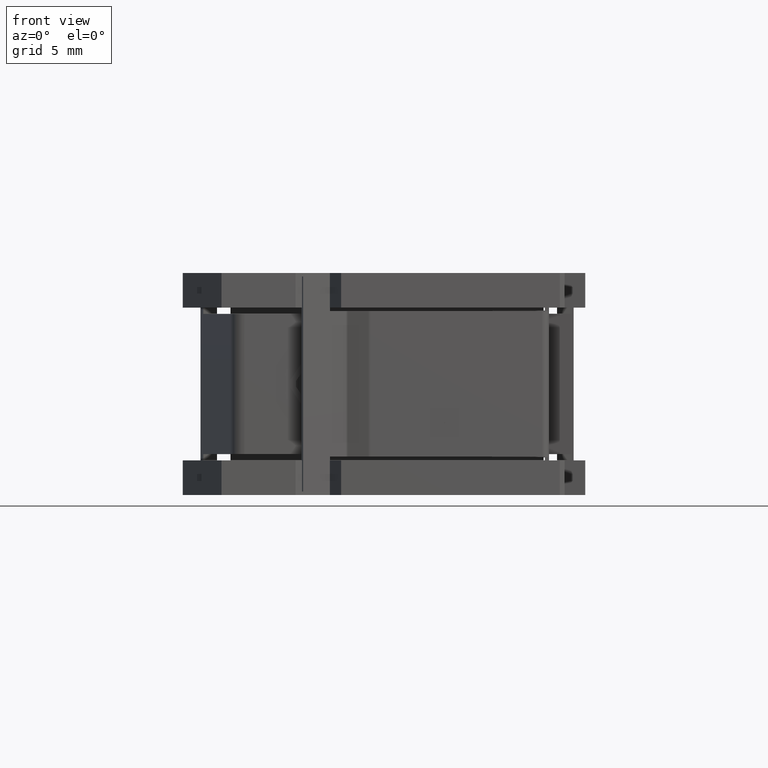
[diagram: clean part render]
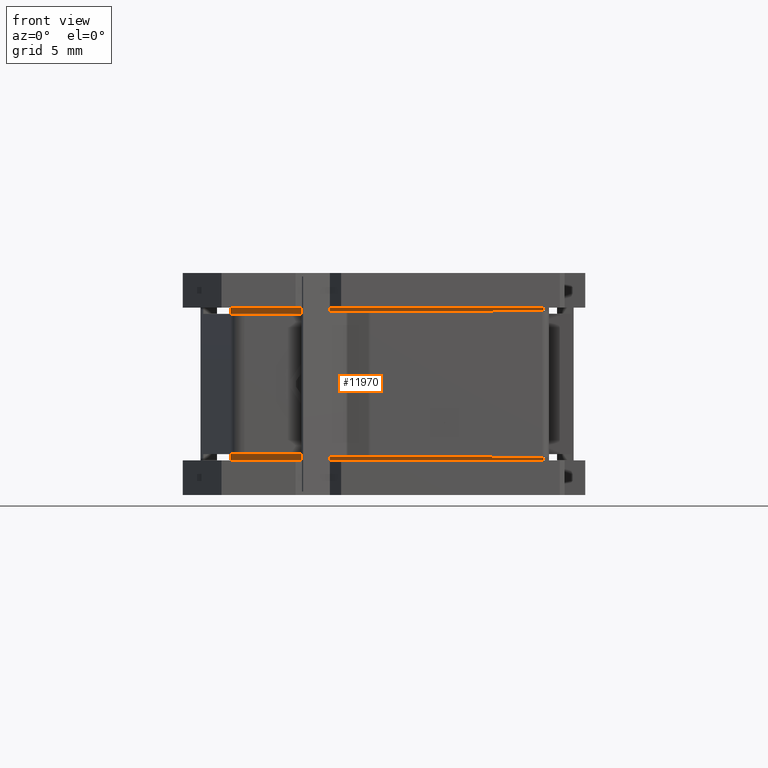
[diagram: same view with one face highlighted and labeled with its STEP entity id]
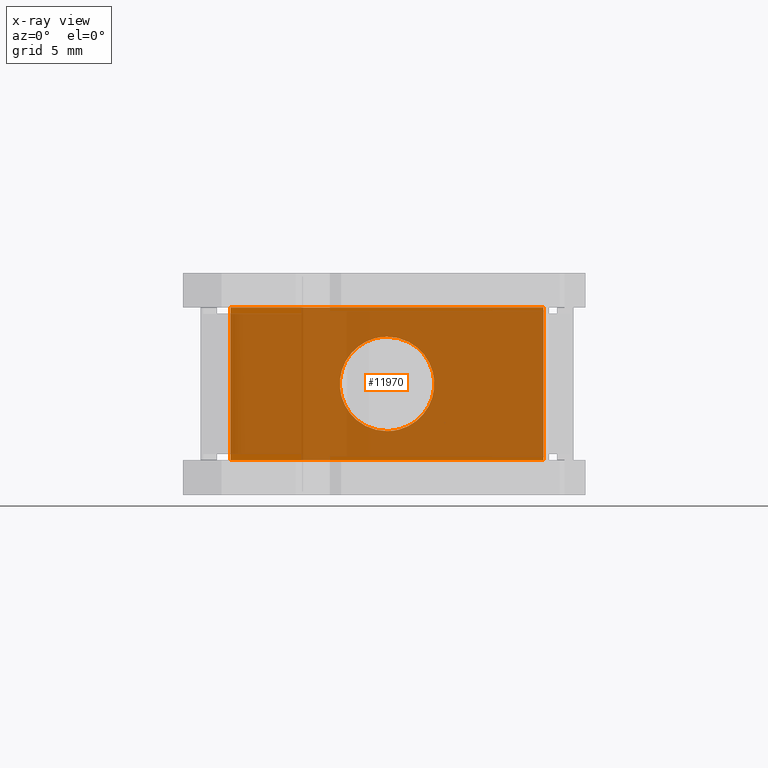
[diagram: x-ray of the same camera — body ghosted, the highlighted face saturated]
A machine part, front view. The second image highlights one B-rep face of the part: STEP entity #11970.
The next image is the same camera in x-ray: the body ghosted, the highlighted face saturated — about 94% of this face is hidden behind the body in this view.
In plain terms, the highlighted planar face has unit normal (0, -1, 0).
Its self-contained STEP definition (entity closure, byte-faithful):
#1187 = VECTOR ( 'NONE', #2668, 1000.000000000000000 ) ;
#1291 = VECTOR ( 'NONE', #1796, 1000.000000000000000 ) ;
#1328 = VECTOR ( 'NONE', #2111, 1000.000000000000000 ) ;
#1463 = AXIS2_PLACEMENT_3D ( 'NONE', #7236, #7200, #7191 ) ;
#1796 = DIRECTION ( 'NONE',  ( 0.0000000000000000000, 0.0000000000000000000, 1.000000000000000000 ) ) ;
#1824 = LINE ( 'NONE', #1829, #1291 ) ;
#1829 = CARTESIAN_POINT ( 'NONE',  ( -1.533721769870785700, 32.12833341090971100, -14.51688671857709400 ) ) ;
#2107 = LINE ( 'NONE', #2108, #1328 ) ;
#2108 = CARTESIAN_POINT ( 'NONE',  ( 0.2562782301292144100, 32.12833341090971100, 9.500000000000000000 ) ) ;
#2111 = DIRECTION ( 'NONE',  ( -1.000000000000000000, -0.0000000000000000000, -0.0000000000000000000 ) ) ;
#2323 = CARTESIAN_POINT ( 'NONE',  ( 9.746278230129213700, 32.12833341090971100, 7.399999999999996800 ) ) ;
#2343 = CARTESIAN_POINT ( 'NONE',  ( 9.746278230129213700, 32.12833341090971100, 0.6000000000000033100 ) ) ;
#2469 = CARTESIAN_POINT ( 'NONE',  ( 12.73882402315612300, 32.12833341090971100, 5.622207370752411400 ) ) ;
#2473 = CARTESIAN_POINT ( 'NONE',  ( 10.64284028658189200, 32.12833341090970400, 7.283038224719036600 ) ) ;
#2474 = CARTESIAN_POINT ( 'NONE',  ( 10.90968945972460700, 32.12833341090971800, 7.194977936367725300 ) ) ;
#2475 = CARTESIAN_POINT ( 'NONE',  ( 9.962535554188498600, 32.12833341090971100, 7.399932532248025800 ) ) ;
#2476 = CARTESIAN_POINT ( 'NONE',  ( 10.98416959531631100, 32.12833341090970400, 7.166674078404602400 ) ) ;
#2477 = CARTESIAN_POINT ( 'NONE',  ( 11.81869151036778100, 32.12833341090971800, 6.735807766215761400 ) ) ;
#2478 = CARTESIAN_POINT ( 'NONE',  ( 10.97267067652811800, 32.12833341090971800, 7.171140871005161600 ) ) ;
#2479 = CARTESIAN_POINT ( 'NONE',  ( 12.53536198593195600, 32.12833341090970400, 5.969893804184956700 ) ) ;
#2480 = CARTESIAN_POINT ( 'NONE',  ( 13.14621084213439100, 32.12833341090971800, 4.432003362527972900 ) ) ;
#2481 = CARTESIAN_POINT ( 'NONE',  ( 12.91743154877150700, 32.12833341090971100, 2.773639009648169600 ) ) ;
#2482 = CARTESIAN_POINT ( 'NONE',  ( 12.73495510038437600, 32.12833341090970400, 2.312297273144435600 ) ) ;
#2483 = CARTESIAN_POINT ( 'NONE',  ( 11.98461893107358200, 32.12833341090971100, 1.429962056067995100 ) ) ;
#2484 = CARTESIAN_POINT ( 'NONE',  ( 11.18601778736244000, 32.12833341090970400, 0.9187460408506368200 ) ) ;
#2485 = CARTESIAN_POINT ( 'NONE',  ( 11.05214138973207500, 32.12833341090970400, 0.8607317366069922000 ) ) ;
#2486 = CARTESIAN_POINT ( 'NONE',  ( 10.17914960099034300, 32.12833341090970400, 0.6001350467939633400 ) ) ;
#2487 = CARTESIAN_POINT ( 'NONE',  ( 9.746278230129213700, 32.12833341090971100, 0.6000000000000033100 ) ) ;
#2490 = CARTESIAN_POINT ( 'NONE',  ( 10.82115920607666800, 32.12833341090970400, 7.226503507470680700 ) ) ;
#2497 = CARTESIAN_POINT ( 'NONE',  ( 10.94749616712384300, 32.12833341090971800, 7.180768788935296200 ) ) ;
#2498 = CARTESIAN_POINT ( 'NONE',  ( 13.02944922964431200, 32.12833341090970400, 3.103773474716152100 ) ) ;
#2499 = CARTESIAN_POINT ( 'NONE',  ( 12.97285918956426100, 32.12833341090971100, 2.925314750567697500 ) ) ;
#2500 = CARTESIAN_POINT ( 'NONE',  ( 12.91295230853388200, 32.12833341090970400, 2.762108634812919100 ) ) ;
#2501 = CARTESIAN_POINT ( 'NONE',  ( 10.28116879879675800, 32.12833341090970400, 7.370041959385577700 ) ) ;
#2502 = CARTESIAN_POINT ( 'NONE',  ( 12.48208599634325800, 32.12833341090971100, 1.927586719761229300 ) ) ;
#2503 = CARTESIAN_POINT ( 'NONE',  ( 9.746278230129213700, 32.12833341090971100, 7.399999999999996800 ) ) ;
#2504 = CARTESIAN_POINT ( 'NONE',  ( 12.90258723434143700, 32.12833341090971100, 5.264073487186235100 ) ) ;
#2506 = CARTESIAN_POINT ( 'NONE',  ( 11.43398095698415600, 32.12833341090972500, 6.988676870257300800 ) ) ;
#2507 = CARTESIAN_POINT ( 'NONE',  ( 12.82753218927865600, 32.12833341090971800, 5.439739557232579500 ) ) ;
#2508 = CARTESIAN_POINT ( 'NONE',  ( 13.06663747454262700, 32.12833341090971800, 4.849874822882600100 ) ) ;
#2509 = CARTESIAN_POINT ( 'NONE',  ( 13.11649722257621200, 32.12833341090970400, 3.465556806224228100 ) ) ;
#2510 = CARTESIAN_POINT ( 'NONE',  ( 12.92707132159414500, 32.12833341090971100, 2.798843477192523000 ) ) ;
#2512 = CARTESIAN_POINT ( 'NONE',  ( 12.88554649352224300, 32.12833341090971100, 5.305863159602659500 ) ) ;
#2513 = CARTESIAN_POINT ( 'NONE',  ( 12.89666874910051700, 32.12833341090971100, 5.278769591385120000 ) ) ;
#2514 = CARTESIAN_POINT ( 'NONE',  ( 11.71617203431567200, 32.12833341090969700, 1.210916244197437300 ) ) ;
#2515 = CARTESIAN_POINT ( 'NONE',  ( 12.31631617406131700, 32.12833341090971800, 6.238340700943507700 ) ) ;
#2516 = CARTESIAN_POINT ( 'NONE',  ( 11.36848560088275100, 32.12833341090971100, 1.007454206973221700 ) ) ;
#2517 = CARTESIAN_POINT ( 'NONE',  ( 12.94129765862071400, 32.12833341090970400, 2.836693623894865900 ) ) ;
#2518 = CARTESIAN_POINT ( 'NONE',  ( 11.09262773140133800, 32.12833341090971800, 0.8776476709117297900 ) ) ;
#2520 = CARTESIAN_POINT ( 'NONE',  ( 13.14631192412662300, 32.12833341090971100, 3.783998318736015800 ) ) ;
#2521 = CARTESIAN_POINT ( 'NONE',  ( 11.02504782151443600, 32.12833341090971100, 0.8496094810287095900 ) ) ;
#2522 = CARTESIAN_POINT ( 'NONE',  ( 10.59632360516046900, 32.12833341090971100, 0.6797083055898762700 ) ) ;
#2523 = CARTESIAN_POINT ( 'NONE',  ( 12.86863055921752700, 32.12833341090970400, 5.346349501271763700 ) ) ;
#2524 = CARTESIAN_POINT ( 'NONE',  ( 11.01034638756080500, 32.12833341090971100, 0.8436888848501735700 ) ) ;
#2579 = CARTESIAN_POINT ( 'NONE',  ( -1.533721769870785200, 32.12833341090971100, -1.500000000000001300 ) ) ;
#2590 = CARTESIAN_POINT ( 'NONE',  ( 5.986278230129217400, 32.12833341090971100, -1.500000000000001300 ) ) ;
#2592 = CARTESIAN_POINT ( 'NONE',  ( 21.02627823012921800, 32.12833341090971100, -1.500000000000000200 ) ) ;
#2597 = CARTESIAN_POINT ( 'NONE',  ( 13.50627823012921700, 32.12833341090971100, -1.500000000000001300 ) ) ;
#2642 = CARTESIAN_POINT ( 'NONE',  ( 21.02627823012922200, 32.12833341090971100, -14.51688671857709400 ) ) ;
#2661 = LINE ( 'NONE', #2642, #1187 ) ;
#2668 = DIRECTION ( 'NONE',  ( 0.0000000000000000000, 0.0000000000000000000, -1.000000000000000000 ) ) ;
#5061 = CARTESIAN_POINT ( 'NONE',  ( 8.508386864942274000, 32.12833341090971800, 0.8333259215952435500 ) ) ;
#5095 = CARTESIAN_POINT ( 'NONE',  ( 9.746278230129213700, 32.12833341090971100, 0.6000000000000033100 ) ) ;
#5096 = CARTESIAN_POINT ( 'NONE',  ( 8.671397254179098000, 32.12833341090972500, 0.7734964925293206200 ) ) ;
#5097 = CARTESIAN_POINT ( 'NONE',  ( 8.582867000532390400, 32.12833341090971100, 0.8050220636322739100 ) ) ;
#5103 = CARTESIAN_POINT ( 'NONE',  ( 8.849716173671973600, 32.12833341090971100, 0.7169617752809635000 ) ) ;
#5107 = CARTESIAN_POINT ( 'NONE',  ( 9.530020906066452500, 32.12833341090971800, 0.6000674677519755000 ) ) ;
#5108 = CARTESIAN_POINT ( 'NONE',  ( 9.211387661455578500, 32.12833341090970400, 0.6299580406144214000 ) ) ;
#5110 = CARTESIAN_POINT ( 'NONE',  ( 8.545060293133751400, 32.12833341090971100, 0.8192312110647039800 ) ) ;
#5111 = CARTESIAN_POINT ( 'NONE',  ( 8.519885783729884900, 32.12833341090971100, 0.8288591289948369400 ) ) ;
#5112 = CARTESIAN_POINT ( 'NONE',  ( 6.346345618124035900, 32.12833341090971100, 3.567996637470107300 ) ) ;
#5113 = CARTESIAN_POINT ( 'NONE',  ( 7.507937529185396000, 32.12833341090971800, 6.570037943932362600 ) ) ;
#5114 = CARTESIAN_POINT ( 'NONE',  ( 6.565485138664281600, 32.12833341090971100, 5.201156522807707500 ) ) ;
#5115 = CARTESIAN_POINT ( 'NONE',  ( 6.376059237682219400, 32.12833341090971100, 4.534443193777448800 ) ) ;
#5116 = CARTESIAN_POINT ( 'NONE',  ( 8.896232855098610100, 32.12833341090971800, 7.320291694410119700 ) ) ;
#5117 = CARTESIAN_POINT ( 'NONE',  ( 6.623925901040698800, 32.12833341090971100, 2.653650498728430400 ) ) ;
#5119 = CARTESIAN_POINT ( 'NONE',  ( 6.579604151724494100, 32.12833341090970400, 5.237891365187016900 ) ) ;
#5120 = CARTESIAN_POINT ( 'NONE',  ( 6.463107230614114400, 32.12833341090970400, 4.896226525285106500 ) ) ;
#5121 = CARTESIAN_POINT ( 'NONE',  ( 8.467508638744059000, 32.12833341090972500, 7.150390518971334200 ) ) ;
#5122 = CARTESIAN_POINT ( 'NONE',  ( 6.346244536131806100, 32.12833341090970400, 4.216001681264941700 ) ) ;
#5123 = CARTESIAN_POINT ( 'NONE',  ( 7.010470463914076700, 32.12833341090971100, 6.072413280238057700 ) ) ;
#5124 = CARTESIAN_POINT ( 'NONE',  ( 9.313406859268726000, 32.12833341090971100, 7.399864953206031400 ) ) ;
#5125 = CARTESIAN_POINT ( 'NONE',  ( 8.124070859376393700, 32.12833341090971100, 6.992545793027243700 ) ) ;
#5129 = CARTESIAN_POINT ( 'NONE',  ( 9.746278230129213700, 32.12833341090971100, 7.399999999999996800 ) ) ;
#5130 = CARTESIAN_POINT ( 'NONE',  ( 6.595887711157848400, 32.12833341090970400, 2.721230408614943500 ) ) ;
#5132 = CARTESIAN_POINT ( 'NONE',  ( 8.482210072697604600, 32.12833341090972500, 7.156311115149826200 ) ) ;
#5133 = CARTESIAN_POINT ( 'NONE',  ( 6.665024270979399600, 32.12833341090971800, 2.560260442767802400 ) ) ;
#5136 = CARTESIAN_POINT ( 'NONE',  ( 6.589969225916988200, 32.12833341090970400, 2.735926512813721800 ) ) ;
#5138 = CARTESIAN_POINT ( 'NONE',  ( 7.673864949891629400, 32.12833341090972500, 1.264192233783259800 ) ) ;
#5140 = CARTESIAN_POINT ( 'NONE',  ( 8.058575503269324300, 32.12833341090972500, 1.011323129747649700 ) ) ;
#5143 = CARTESIAN_POINT ( 'NONE',  ( 8.306538672896394400, 32.12833341090970400, 7.081253959149634600 ) ) ;
#5144 = CARTESIAN_POINT ( 'NONE',  ( 6.957194474325614700, 32.12833341090971800, 2.030106195815895000 ) ) ;
#5145 = CARTESIAN_POINT ( 'NONE',  ( 7.176240286196617500, 32.12833341090970400, 1.761659299056980800 ) ) ;
#5147 = CARTESIAN_POINT ( 'NONE',  ( 6.575124911486918600, 32.12833341090971800, 5.226360990351945900 ) ) ;
#5149 = CARTESIAN_POINT ( 'NONE',  ( 6.519697270694167400, 32.12833341090971100, 5.074685249433040100 ) ) ;
#5150 = CARTESIAN_POINT ( 'NONE',  ( 7.776384425943710700, 32.12833341090971100, 6.789083755803186000 ) ) ;
#5153 = CARTESIAN_POINT ( 'NONE',  ( 6.551258801637717800, 32.12833341090971100, 5.163306376105519600 ) ) ;
#5157 = CARTESIAN_POINT ( 'NONE',  ( 8.399928728857315000, 32.12833341090971100, 7.122352329088411900 ) ) ;
#5158 = CARTESIAN_POINT ( 'NONE',  ( 6.757601359875657500, 32.12833341090970400, 5.687702726857556200 ) ) ;
#5160 = CARTESIAN_POINT ( 'NONE',  ( 6.753732437101654700, 32.12833341090971100, 2.377792629248234300 ) ) ;
#5161 = CARTESIAN_POINT ( 'NONE',  ( 8.440415070526478700, 32.12833341090971100, 7.139268263393090800 ) ) ;
#5163 = CARTESIAN_POINT ( 'NONE',  ( 6.607009966736062400, 32.12833341090970400, 2.694136840397457300 ) ) ;
#5164 = CARTESIAN_POINT ( 'NONE',  ( 6.425918985715795500, 32.12833341090970400, 3.150125177118786400 ) ) ;
#5316 = EDGE_CURVE ( 'NONE', #10176, #10169, #12430, .T. ) ;
#7191 = DIRECTION ( 'NONE',  ( 0.0000000000000000000, -0.0000000000000000000, -1.000000000000000000 ) ) ;
#7198 = FACE_OUTER_BOUND ( 'NONE', #9160, .T. ) ;
#7200 = DIRECTION ( 'NONE',  ( 0.0000000000000000000, -1.000000000000000000, 0.0000000000000000000 ) ) ;
#7226 = FACE_BOUND ( 'NONE', #9119, .T. ) ;
#7230 = PLANE ( 'NONE',  #1463 ) ;
#7236 = CARTESIAN_POINT ( 'NONE',  ( 0.2562782301292144100, 32.12833341090971100, -14.51688671857709400 ) ) ;
#8761 = CARTESIAN_POINT ( 'NONE',  ( 21.02627823012921800, 32.12833341090971100, -1.500000000000000200 ) ) ;
#8773 = CARTESIAN_POINT ( 'NONE',  ( -1.533721769870785200, 32.12833341090971100, -1.500000000000001300 ) ) ;
#8801 = CARTESIAN_POINT ( 'NONE',  ( 21.02627823012921800, 32.12833341090970400, 9.500000000000000000 ) ) ;
#8809 = CARTESIAN_POINT ( 'NONE',  ( -1.533721769870785500, 32.12833341090971100, 9.500000000000000000 ) ) ;
#9119 = EDGE_LOOP ( 'NONE', ( #10346, #10345 ) ) ;
#9160 = EDGE_LOOP ( 'NONE', ( #10383, #10340, #10353, #10387 ) ) ;
#9654 = VERTEX_POINT ( 'NONE', #8773 ) ;
#9656 = VERTEX_POINT ( 'NONE', #8761 ) ;
#9685 = VERTEX_POINT ( 'NONE', #8801 ) ;
#9692 = VERTEX_POINT ( 'NONE', #8809 ) ;
#10169 = VERTEX_POINT ( 'NONE', #2323 ) ;
#10176 = VERTEX_POINT ( 'NONE', #2343 ) ;
#10340 = ORIENTED_EDGE ( 'NONE', *, *, #11728, .F. ) ;
#10345 = ORIENTED_EDGE ( 'NONE', *, *, #5316, .T. ) ;
#10346 = ORIENTED_EDGE ( 'NONE', *, *, #11686, .T. ) ;
#10353 = ORIENTED_EDGE ( 'NONE', *, *, #11847, .T. ) ;
#10383 = ORIENTED_EDGE ( 'NONE', *, *, #11715, .T. ) ;
#10387 = ORIENTED_EDGE ( 'NONE', *, *, #11761, .F. ) ;
#11686 = EDGE_CURVE ( 'NONE', #10169, #10176, #12597, .T. ) ;
#11715 = EDGE_CURVE ( 'NONE', #9654, #9656, #12625, .T. ) ;
#11728 = EDGE_CURVE ( 'NONE', #9685, #9656, #2661, .T. ) ;
#11761 = EDGE_CURVE ( 'NONE', #9654, #9692, #1824, .T. ) ;
#11847 = EDGE_CURVE ( 'NONE', #9685, #9692, #2107, .T. ) ;
#11970 = ADVANCED_FACE ( 'NONE', ( #7226, #7198 ), #7230, .T. ) ;
#12430 = B_SPLINE_CURVE_WITH_KNOTS ( 'NONE', 3,
 ( #5095, #5107, #5108, #5103, #5096, #5097, #5110, #5111, #5061, #5140, #5138, #5145, #5144, #5160, #5133, #5117, #5163, #5130, #5136, #5164, #5112, #5122, #5115, #5120, #5149, #5153, #5114, #5147, #5119, #5158, #5123, #5113, #5150, #5125, #5143, #5157, #5161, #5121, #5132, #5116, #5124, #5129 ),
 .UNSPECIFIED., .F., .F.,
 ( 4, 1, 1, 1, 1, 2, 2, 2, 1, 1, 1, 1, 2, 2, 2, 1, 1, 1, 1, 2, 2, 2, 1, 1, 1, 1, 2, 2, 4 ),
 ( 0.0000000000000000000, 0.06249999999999802900, 0.09374999999999704400, 0.1093749999999965600, 0.1171874999999960600, 0.1210937499999960600, 0.1249999999999960600, 0.2499999999999947300, 0.3124999999999941200, 0.3437499999999937300, 0.3593749999999935600, 0.3671874999999935100, 0.3710937499999933900, 0.3749999999999932800, 0.4999999999999912300, 0.5624999999999901200, 0.5937499999999894500, 0.6093749999999891200, 0.6171874999999891200, 0.6210937499999892300, 0.6249999999999892300, 0.7499999999999887900, 0.8124999999999885600, 0.8437499999999886800, 0.8593749999999887900, 0.8671874999999887900, 0.8710937499999890100, 0.8749999999999891200, 1.000000000000000000 ),
 .UNSPECIFIED. ) ;
#12597 = B_SPLINE_CURVE_WITH_KNOTS ( 'NONE', 3,
 ( #2503, #2475, #2501, #2473, #2490, #2474, #2497, #2478, #2476, #2506, #2477, #2515, #2479, #2469, #2507, #2523, #2512, #2513, #2504, #2508, #2480, #2520, #2509, #2498, #2499, #2517, #2510, #2481, #2500, #2482, #2502, #2483, #2514, #2516, #2484, #2518, #2485, #2521, #2524, #2522, #2486, #2487 ),
 .UNSPECIFIED., .F., .F.,
 ( 4, 1, 1, 1, 1, 2, 2, 2, 1, 1, 1, 1, 2, 2, 2, 1, 1, 1, 1, 2, 2, 2, 1, 1, 1, 1, 2, 2, 4 ),
 ( 0.0000000000000000000, 0.06249999999999882000, 0.09374999999999798800, 0.1093749999999977900, 0.1171874999999974300, 0.1210937499999974700, 0.1249999999999975300, 0.2499999999999968400, 0.3124999999999965000, 0.3437499999999962800, 0.3593749999999962800, 0.3671874999999963400, 0.3710937499999963900, 0.3749999999999963900, 0.4999999999999998900, 0.5625000000000015500, 0.5937500000000023300, 0.6093750000000025500, 0.6171875000000027800, 0.6210937500000028900, 0.6250000000000031100, 0.7500000000000062200, 0.8125000000000078800, 0.8437500000000086600, 0.8593750000000087700, 0.8671875000000091000, 0.8710937500000089900, 0.8750000000000088800, 1.000000000000000000 ),
 .UNSPECIFIED. ) ;
#12625 = B_SPLINE_CURVE_WITH_KNOTS ( 'NONE', 3,
 ( #2579, #2590, #2597, #2592 ),
 .UNSPECIFIED., .F., .F.,
 ( 4, 4 ),
 ( 0.0000000000000000000, 1.000000000000000000 ),
 .UNSPECIFIED. ) ;